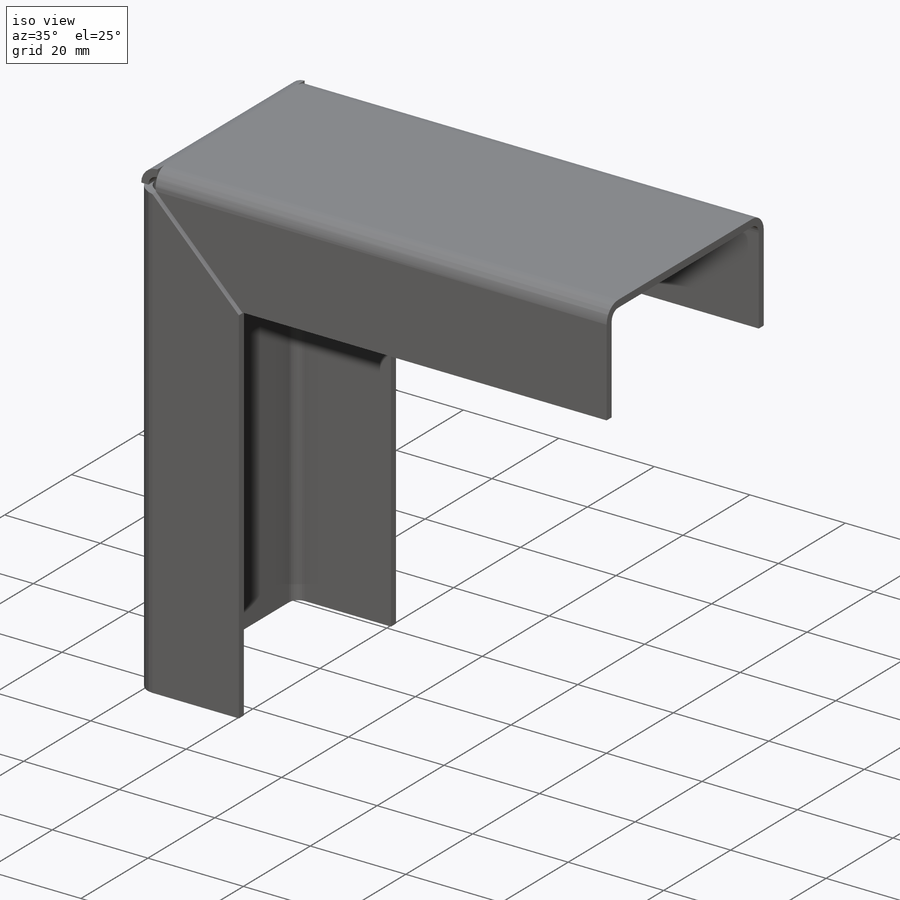
[diagram: iso view]
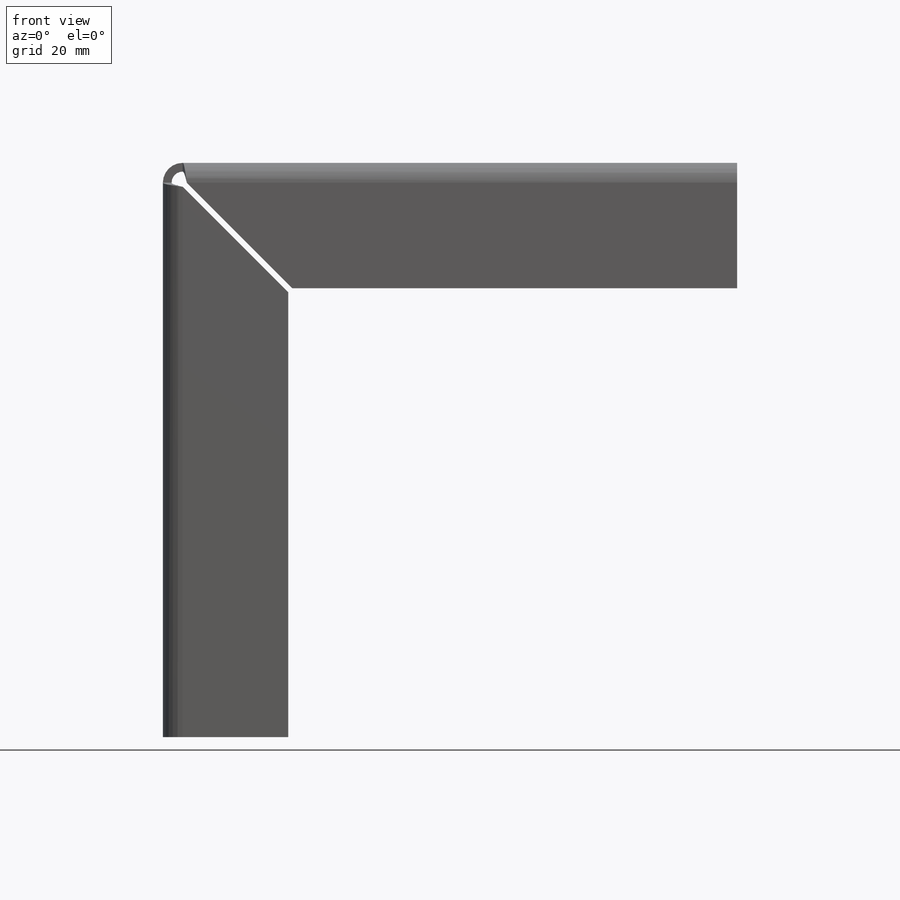
[diagram: front view]
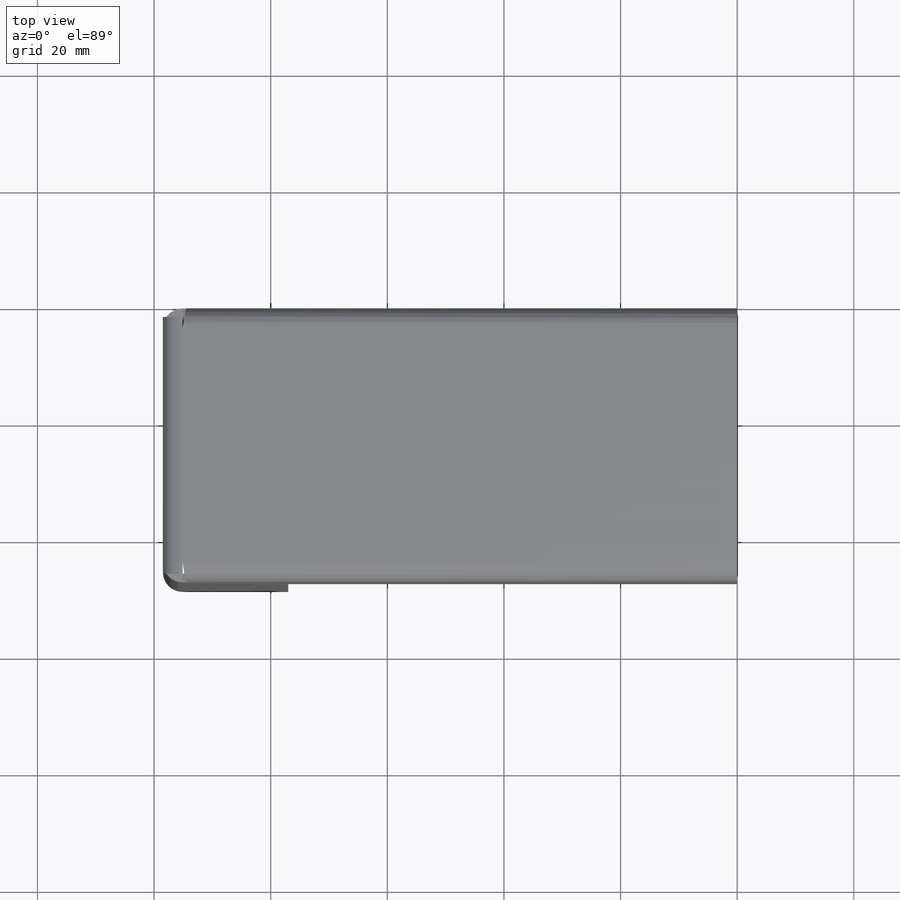
[diagram: top view]
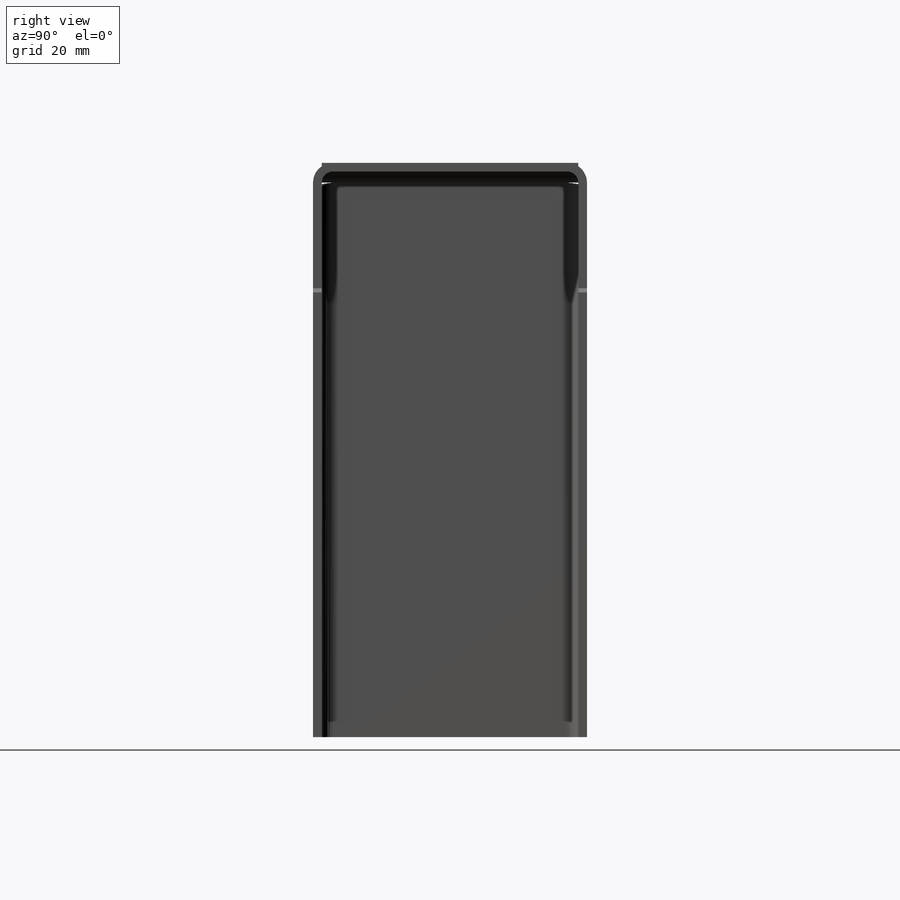
[diagram: right view]
SOLIDWORKS PART (.sldprt)
format: sldprt  version: not decoded by parser v0  size: 996,864 bytes
history: native  units: mm
features: sketch x13, plane x3, cut_extrude x2, sheet_metal_op x2, material x1 + 2 further entries (+9 scaffold rows collapsed; 2 parser-record rows omitted)
feature tree (34):
  scaffold x9  (default folders/planes/origin — collapsed)
  material  "Material <nicht festgelegt>"
  plane  "Ebene vorne"
  plane  "Ebene oben"
  plane  "Ebene rechts"
  sketch  "Skizze1"  dims[c1.D1=100.0mm c1.D2=100.0mm c1.D3=~299.090214mm c2.D1=50.0mm c2.D5=15.0mm c2.D6=1.0mm c2.D7=5.0mm]
  sketch  "Skizze3"  dims[c1.D1=~100.666412mm c1.D2=~45.666963mm c2.D1=3.0mm c2.D2=3.0mm c2.D3=3.0mm]
  cut_extrude  "Schnitt-Linear austragen2"  Depth=97mm
  sketch  "Skizze14"  dims[c1.D1=3.0mm c1.D2=100.0mm c2.D1=3.0mm c2.D2=100.0mm c3.D1=3.0mm]
  cut_extrude  "Schnitt-Linear austragen5"  Depth=1.9mm
  sketch  "Skizze27"
  sketch  "Skizze28"
  sketch  "Skizze29"
  sketch  "Skizze30"  dims[c1.Kantenbiegung1=0.0 c1.D1=1.9mm c1.D4=90.0deg c1.D5=2.0 c1.D8=0.75mm c1.D9=0.75mm c1.Kantenbiegung2=0.0 c2.D1=1.9mm c2.D4=90.0deg c2.D5=3.0 c2.D8=0.75mm c2.D9=0.75mm c2.Kantenbiegung3=0.0 c3.D1=1.9mm c3.D4=90.0deg c3.D5=4.0 c3.D8=0.75mm c3.D9=0.75mm c3.Kantenbiegung4=0.0 c4.D1=1.9mm c4.D4=90.0deg c4.D5=5.0 c4.D8=0.75mm c4.D9=0.75mm c5.D1=1.9mm c5.D2=500.0mm c5.D3=0.0mm c5.D6=10.0mm c5.D7=20.0mm c5.D8=1.0mm]
  sketch  "Biegung-Linien5"
  sketch  "Rahmen5"
  sheet_metal_op  "Blech9"
  "Abwicklung9"
  sketch  "Biegung-Linien6"
  sketch  "Rahmen6"
  parser-record x2  (decoder bookkeeping rows leaked as tree rows — omitted from the tree; the rows remain in map.json)
  sheet_metal_op  "Blech10"
  "Abwicklung9"
  sketch  "Biegung-Linien6"
  sketch  "Rahmen6"
decode coverage: 6 of 17 modeling features carry decoded parameters; 2 rows unclassified (native names shown)
note: ~ marks probable driven/reference dimensions
note: suppression state not decoded; provenance and decode notes live in map.json
